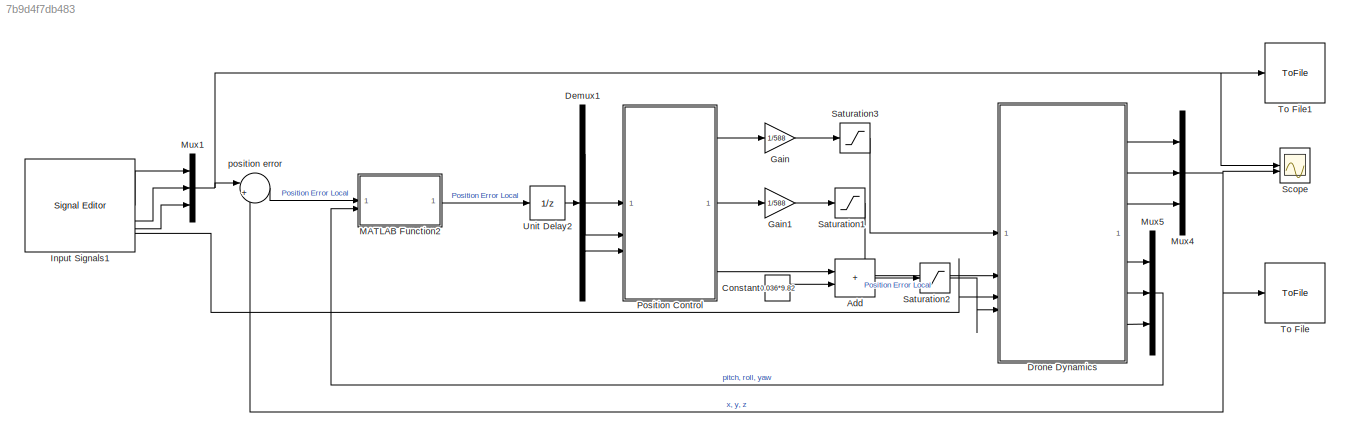
MODEL slx_7b9d4f7db483
KIND model
CONFIG AbsTol = auto
CONFIG EnableMultiTasking = off
CONFIG FixedStep = auto
CONFIG MaxStep = auto
CONFIG MinStep = auto
CONFIG RelTol = 1e-1
CONFIG SampleTimeConstraint = Unconstrained
CONFIG SolverName = VariableStepAuto
CONFIG StartTime = 0.0
CONFIG StopTime = 60
BLOCK [Sum] Add
  IconShape = rectangular
BLOCK [Constant] Constant
  Value = 0.036*9.82
BLOCK [Demux] Demux1
  Outputs = 3
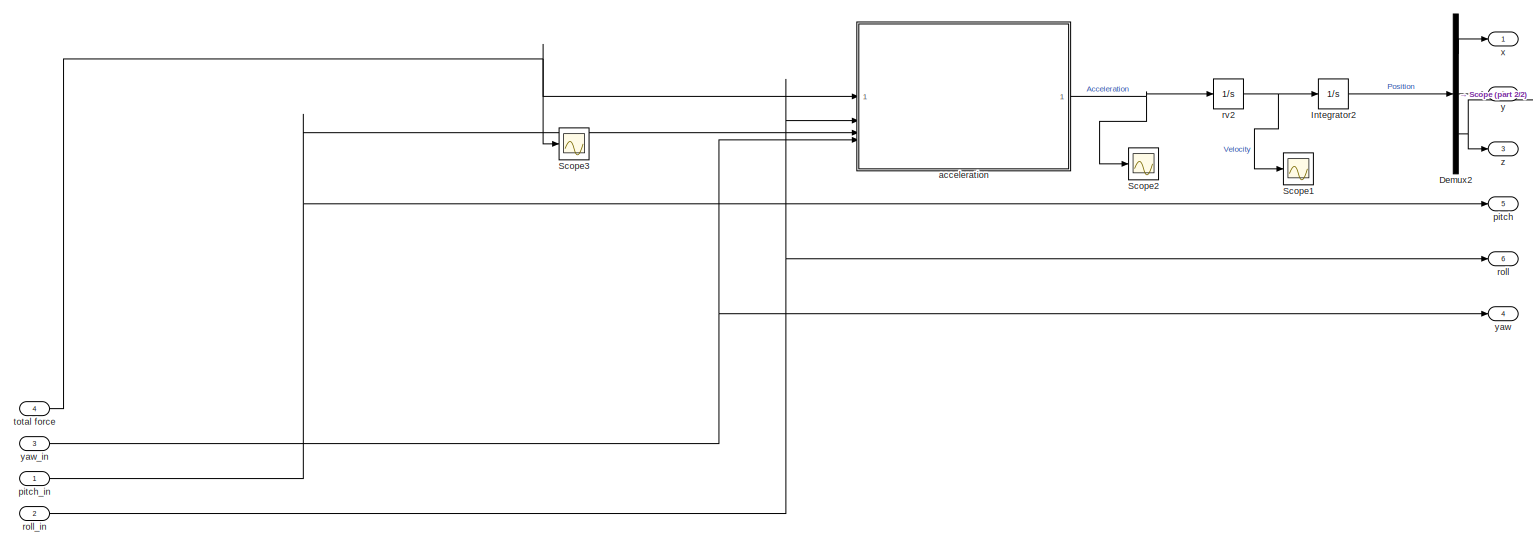
[diagram: Drone Dynamics - part 1/2, most of the canvas]
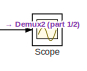
[diagram: Drone Dynamics - part 2/2, top right region]
BLOCK [SubSystem] Drone Dynamics
  NameLocation = top
BLOCK [Demux] Drone Dynamics/Demux2
  Outputs = 3
BLOCK [Integrator] Drone Dynamics/Integrator2
BLOCK [Scope] Drone Dynamics/Scope
  Floating = off
  NumInputPorts = 1
  ScopeSpecificationString = Simulink.scopes.TimeScopeBlockCfg('CurrentConfiguration', extmgr.ConfigurationSet(extmgr.Configuration('Core','General UI',true),extmgr.Configuration('Core','Source UI',true),extmgr.Configuration('Sources','WiredSimulink',true,'DataLoggingVariableName','ScopeData1'),extmgr.Configuration('Visuals','Time Domain',true,'SerializedDisplays',{struct('MinYLimReal','-0.02226','MaxYLimReal','0.02226','YLab...<+1456ch>
BLOCK [Scope] Drone Dynamics/Scope1
  Floating = off
  NumInputPorts = 1
  ScopeSpecificationString = Simulink.scopes.TimeScopeBlockCfg('CurrentConfiguration', extmgr.ConfigurationSet(extmgr.Configuration('Core','General UI',true),extmgr.Configuration('Core','Source UI',true),extmgr.Configuration('Sources','WiredSimulink',true,'DataLoggingVariableName','ScopeData2'),extmgr.Configuration('Visuals','Time Domain',true,'SerializedDisplays',{struct('MinYLimReal','-10013.6024','MaxYLimReal','10010.04106...<+1510ch>
BLOCK [Scope] Drone Dynamics/Scope2
  Floating = off
  NumInputPorts = 1
  ScopeSpecificationString = Simulink.scopes.TimeScopeBlockCfg('CurrentConfiguration', extmgr.ConfigurationSet(extmgr.Configuration('Core','General UI',true),extmgr.Configuration('Core','Source UI',true),extmgr.Configuration('Sources','WiredSimulink',true,'DataLoggingVariableName','ScopeData3'),extmgr.Configuration('Visuals','Time Domain',true,'SerializedDisplays',{struct('MinYLimReal','-1001226.69332','MaxYLimReal','1001582....<+1542ch>
BLOCK [Scope] Drone Dynamics/Scope3
  Floating = off
  NumInputPorts = 1
  ScopeSpecificationString = Simulink.scopes.TimeScopeBlockCfg('CurrentConfiguration', extmgr.ConfigurationSet(extmgr.Configuration('Core','General UI',true),extmgr.Configuration('Core','Source UI',true),extmgr.Configuration('Sources','WiredSimulink',true,'DataLoggingVariableName','ScopeData4'),extmgr.Configuration('Visuals','Time Domain',true,'SerializedDisplays',{struct('MinYLimReal','-1001226.3398','MaxYLimReal','1001583.2...<+1533ch>
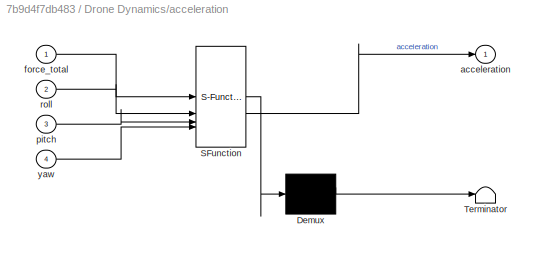
BLOCK [SubSystem] Drone Dynamics/acceleration
  ErrorFcn = Stateflow.Translate.translate
  PermitHierarchicalResolution = ExplicitOnly
  SFBlockType = MATLAB Function
  TreatAsAtomicUnit = on
BLOCK [Demux] Drone Dynamics/acceleration/ Demux 
  Outputs = 1
BLOCK [S-Function] Drone Dynamics/acceleration/ SFunction 
  EnableBusSupport = on
  FunctionName = sf_sfun
  PortCounts = [4 2]
  SFcnIsStateOwnerBlock = off
  SFunctionDeploymentMode = off
  Tag = Stateflow S-Function 1
BLOCK [Terminator] Drone Dynamics/acceleration/ Terminator 
BLOCK [Outport] Drone Dynamics/acceleration/acceleration
BLOCK [Inport] Drone Dynamics/acceleration/force_total
BLOCK [Inport] Drone Dynamics/acceleration/pitch
  Port = 3
BLOCK [Inport] Drone Dynamics/acceleration/roll
  Port = 2
BLOCK [Inport] Drone Dynamics/acceleration/yaw
  Port = 4
BLOCK [Outport] Drone Dynamics/pitch
  NameLocation = top
  Port = 5
BLOCK [Inport] Drone Dynamics/pitch_in
  NameLocation = top
BLOCK [Outport] Drone Dynamics/roll
  NameLocation = top
  Port = 6
BLOCK [Inport] Drone Dynamics/roll_in
  NameLocation = top
  Port = 2
BLOCK [Integrator] Drone Dynamics/rv2
BLOCK [Inport] Drone Dynamics/total force
  NameLocation = top
  Port = 4
BLOCK [Outport] Drone Dynamics/x
  NameLocation = top
BLOCK [Outport] Drone Dynamics/y
  NameLocation = top
  Port = 2
BLOCK [Outport] Drone Dynamics/yaw
  NameLocation = top
  Port = 4
BLOCK [Inport] Drone Dynamics/yaw_in
  NameLocation = top
  Port = 3
BLOCK [Outport] Drone Dynamics/z
  NameLocation = top
  Port = 3
BLOCK [Gain] Gain
  Gain = 1/588
BLOCK [Gain] Gain1
  Gain = 1/588
BLOCK [Reference] Input Signals1  REF=SignalEditorBlockLib/Signal Editor
  LibrarySourceBlock = simulink/Sources/Signal Editor
  SourceBlock = SignalEditorBlockLib/Signal Editor
  SourceType = SignalEditor
  UserDataPersistent = on
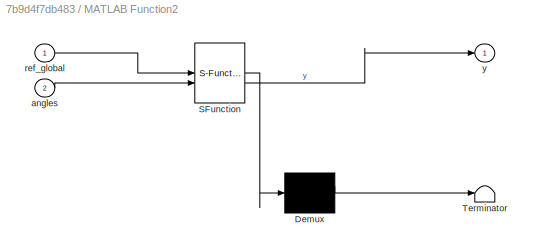
BLOCK [SubSystem] MATLAB Function2
  ErrorFcn = Stateflow.Translate.translate
  PermitHierarchicalResolution = ExplicitOnly
  SFBlockType = MATLAB Function
  TreatAsAtomicUnit = on
BLOCK [Demux] MATLAB Function2/ Demux 
  Outputs = 1
BLOCK [S-Function] MATLAB Function2/ SFunction 
  EnableBusSupport = on
  FunctionName = sf_sfun
  PortCounts = [2 2]
  SFcnIsStateOwnerBlock = off
  SFunctionDeploymentMode = off
  Tag = Stateflow S-Function 7
BLOCK [Terminator] MATLAB Function2/ Terminator 
BLOCK [Inport] MATLAB Function2/angles
  Port = 2
BLOCK [Inport] MATLAB Function2/ref_global
BLOCK [Outport] MATLAB Function2/y
  VectorParamsAs1DForOutWhenUnconnected = off
BLOCK [Mux] Mux1
  DisplayOption = bar
  Inputs = 3
BLOCK [Mux] Mux4
  DisplayOption = bar
  Inputs = 3
BLOCK [Mux] Mux5
  DisplayOption = bar
  Inputs = 3
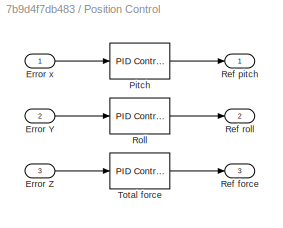
BLOCK [SubSystem] Position Control
  TreatAsAtomicUnit = on
BLOCK [Inport] Position Control/Error Y
  Port = 2
BLOCK [Inport] Position Control/Error Z
  Port = 3
BLOCK [Inport] Position Control/Error x
BLOCK [Reference] Position Control/Pitch  REF=slpidlib/PID Controller
  SourceBlock = slpidlib/PID Controller
  SourceType = PID 1dof
BLOCK [Outport] Position Control/Ref force
  Port = 3
BLOCK [Outport] Position Control/Ref pitch
BLOCK [Outport] Position Control/Ref roll
  Port = 2
BLOCK [Reference] Position Control/Roll  REF=slpidlib/PID Controller
  SourceBlock = slpidlib/PID Controller
  SourceType = PID 1dof
BLOCK [Reference] Position Control/Total force  REF=slpidlib/PID Controller
  SourceBlock = slpidlib/PID Controller
  SourceType = PID 1dof
BLOCK [Saturate] Saturation1
  LinearizeAsGain = off
  LowerLimit = -0.17
  UpperLimit = 0.17
  ZeroCross = off
BLOCK [Saturate] Saturation2
  LinearizeAsGain = off
  LowerLimit = 0
  UpperLimit = 0.6
BLOCK [Saturate] Saturation3
  LinearizeAsGain = off
  LowerLimit = -0.17
  UpperLimit = 0.17
  ZeroCross = off
BLOCK [Scope] Scope
  Floating = off
  NumInputPorts = 2
  ScopeSpecificationString = Simulink.scopes.TimeScopeBlockCfg('CurrentConfiguration', extmgr.ConfigurationSet(extmgr.Configuration('Core','General UI',true),extmgr.Configuration('Core','Source UI',true),extmgr.Configuration('Sources','WiredSimulink',true),extmgr.Configuration('Visuals','Time Domain',true,'SerializedDisplays',{struct('MinYLimReal','-0.2323','MaxYLimReal','2.06739','YLabelReal','','MinYLimMag','0.00000','MaxYL...<+2195ch>
BLOCK [ToFile] To File
  Filename = measurement.mat
  SaveFormat = Timeseries
BLOCK [ToFile] To File1
  Filename = refrence.mat
  SaveFormat = Timeseries
BLOCK [UnitDelay] Unit Delay2
  HasFrameUpgradeWarning = on
  SampleTime = 0.02
BLOCK [Sum] position error
  Inputs = |+-
  NameLocation = top
LINE Add:1 -> Saturation2:1
LINE Constant:1 -> Add:2
LINE Demux1:1 -> Position Control:1
LINE Demux1:2 -> Position Control:2
LINE Demux1:3 -> Position Control:3
LINE Drone Dynamics/Demux2:1 -> Drone Dynamics/x:1
LINE Drone Dynamics/Demux2:2 -> Drone Dynamics/y:1
NET Drone Dynamics/Demux2:3 -> Drone Dynamics/Scope:1, Drone Dynamics/z:1
LINE Drone Dynamics/Integrator2:1 -> Drone Dynamics/Demux2:1
NET Drone Dynamics/acceleration:1 -> Drone Dynamics/Scope2:1, Drone Dynamics/rv2:1
NET Drone Dynamics/pitch_in:1 -> Drone Dynamics/acceleration:3, Drone Dynamics/pitch:1
NET Drone Dynamics/roll_in:1 -> Drone Dynamics/acceleration:2, Drone Dynamics/roll:1
NET Drone Dynamics/rv2:1 -> Drone Dynamics/Integrator2:1, Drone Dynamics/Scope1:1
NET Drone Dynamics/total force:1 -> Drone Dynamics/Scope3:1, Drone Dynamics/acceleration:1
NET Drone Dynamics/yaw_in:1 -> Drone Dynamics/acceleration:4, Drone Dynamics/yaw:1
LINE Drone Dynamics:1 -> Mux4:1
LINE Drone Dynamics:2 -> Mux4:2
LINE Drone Dynamics:3 -> Mux4:3
LINE Drone Dynamics:4 -> Mux5:1
LINE Drone Dynamics:5 -> Mux5:2
LINE Drone Dynamics:6 -> Mux5:3
LINE Gain1:1 -> Saturation1:1
LINE Gain:1 -> Saturation3:1
LINE Input Signals1:1 -> Mux1:1
LINE Input Signals1:2 -> Mux1:2
LINE Input Signals1:3 -> Mux1:3
LINE Input Signals1:4 -> Drone Dynamics:3
LINE MATLAB Function2:1 -> Unit Delay2:1
NET Mux1:1 -> Scope:1, To File1:1, position error:1
NET Mux4:1 -> Scope:2, To File:1, position error:2
LINE Mux5:1 -> MATLAB Function2:2
LINE Position Control/Error Y:1 -> Position Control/Roll:1
LINE Position Control/Error Z:1 -> Position Control/Total force:1
LINE Position Control/Error x:1 -> Position Control/Pitch:1
LINE Position Control/Pitch:1 -> Position Control/Ref pitch:1
LINE Position Control/Roll:1 -> Position Control/Ref roll:1
LINE Position Control/Total force:1 -> Position Control/Ref force:1
LINE Position Control:1 -> Gain:1
LINE Position Control:2 -> Gain1:1
LINE Position Control:3 -> Add:1
LINE Saturation1:1 -> Drone Dynamics:2
LINE Saturation2:1 -> Drone Dynamics:4
LINE Saturation3:1 -> Drone Dynamics:1
LINE Unit Delay2:1 -> Demux1:1
LINE position error:1 -> MATLAB Function2:1
note: NET lines group one-source signal fan-out (src -> all destinations, sorted); 1:1 wires keep LINE
CHART Drone Dynamics/acceleration states=1 transitions=1
  STATE_LABEL 'eML_blk_kernel()'
  STATE_LABEL 'SCRIPT:\nfunction acceleration = acceleration(force_total, roll, pitch, yaw)\nm = 0.036;\ng = 9.82;\n\nacceleration = [pitch*g;g*roll; force_total-m*g];\n'
CHART MATLAB Function2 states=1 transitions=1
  STATE_LABEL 'eML_blk_kernel()'
  STATE_LABEL 'SCRIPT:\nfunction y = fcn(ref_global, angles)\n\ntheta = angles(2); % pitch\nphi = -angles(3);  % roll\npsi = angles(1);  % yaw\n\nRz = [cos(psi) -sin(psi) 0;\n        sin(psi) cos(psi) 0;\n        0 0 1];\n\nRx = [1 0 0;\n         0 cos(phi) sin(phi);\n         0 -sin(phi) cos(phi)];\n\nRy = [cos(theta) 0 sin(theta);\n        0 1 0;\n        -sin(theta) 0 cos(theta)];\n    \nR = Rz*Ry*Rx;\n\n\nref_local = inv(R)*ref_g...<+24ch>'
CHART  states=0 transitions=0
CHART  states=0 transitions=0
